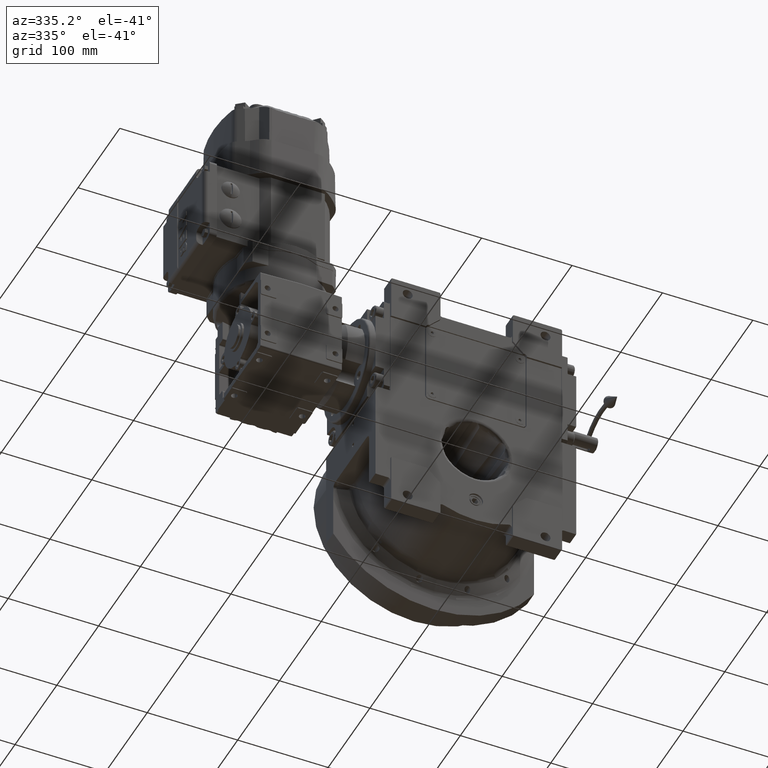
[diagram: clean part render]
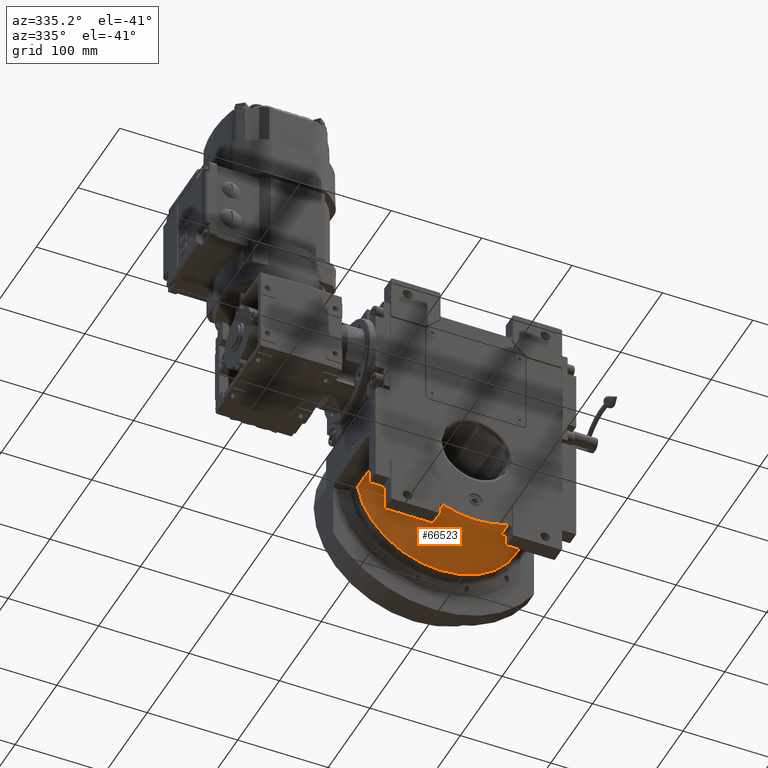
[diagram: same view with one face highlighted and labeled with its STEP entity id]
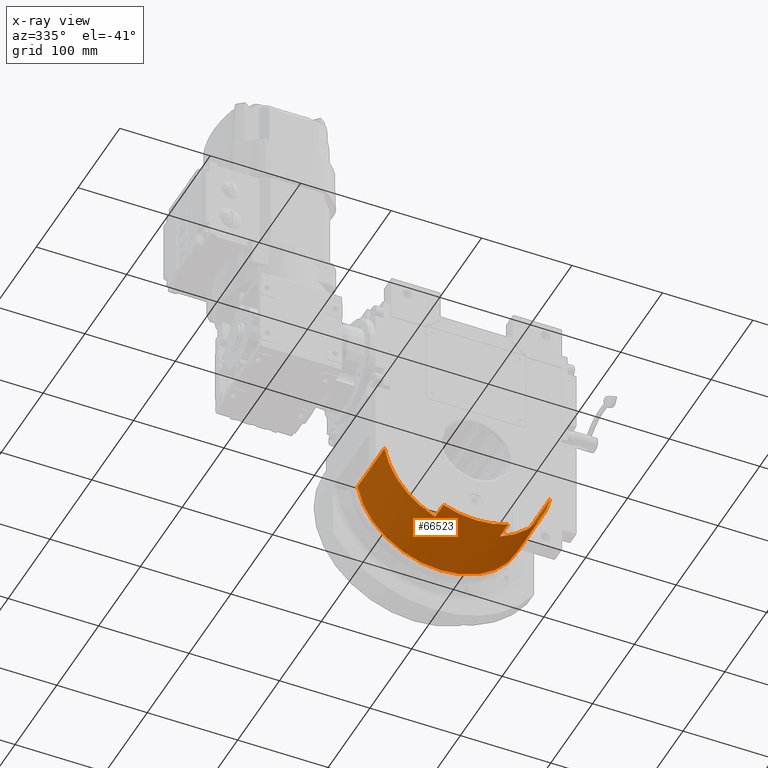
[diagram: x-ray of the same camera — body ghosted, the highlighted face saturated]
A machine part, auxiliary view. The second image highlights one B-rep face of the part: STEP entity #66523.
The next image is the same camera in x-ray: the body ghosted, the highlighted face saturated — about 0% of this face is hidden behind the body in this view.
In plain terms, the highlighted cylindrical surface (partial cylindrical patch) has radius 93 mm, axis along (0, 1, 0).
Its self-contained STEP definition (entity closure, byte-faithful):
#1043 = CARTESIAN_POINT ( 'NONE',  ( 35.84375000000000000, -33.50000000000000000, -85.81506619433150718 ) ) ;
#1050 = EDGE_CURVE ( 'NONE', #10619, #44617, #38602, .T. ) ;
#6469 = EDGE_CURVE ( 'NONE', #51495, #88990, #14395, .T. ) ;
#7081 = EDGE_CURVE ( 'NONE', #40830, #65333, #76378, .T. ) ;
#8034 = CIRCLE ( 'NONE', #33884, 93.00000000000001421 ) ;
#9687 = CARTESIAN_POINT ( 'NONE',  ( 35.84375000000000000, -33.50000000000000000, -85.81506619433150718 ) ) ;
#10321 = DIRECTION ( 'NONE',  ( 0.000000000000000000, 1.000000000000000000, 0.000000000000000000 ) ) ;
#10619 = VERTEX_POINT ( 'NONE', #17804 ) ;
#12515 = CIRCLE ( 'NONE', #68954, 93.00000000000001421 ) ;
#13212 = EDGE_CURVE ( 'NONE', #51495, #32263, #12515, .T. ) ;
#14395 = LINE ( 'NONE', #91633, #65981 ) ;
#15877 = CARTESIAN_POINT ( 'NONE',  ( -35.84375000000000000, -53.50000000000000000, -85.81506619433150718 ) ) ;
#17804 = CARTESIAN_POINT ( 'NONE',  ( -35.84375000000000000, -53.50000000000000000, -85.81506619433150718 ) ) ;
#19284 = ORIENTED_EDGE ( 'NONE', *, *, #7081, .T. ) ;
#20185 = DIRECTION ( 'NONE',  ( 0.000000000000000000, 1.000000000000000000, 0.000000000000000000 ) ) ;
#23895 = ORIENTED_EDGE ( 'NONE', *, *, #70275, .T. ) ;
#25500 = EDGE_CURVE ( 'NONE', #10619, #65333, #77398, .T. ) ;
#25818 = CARTESIAN_POINT ( 'NONE',  ( -91.75016228508779648, -33.50000000000000000, -15.19564808292360070 ) ) ;
#26470 = FACE_OUTER_BOUND ( 'NONE', #45021, .T. ) ;
#26746 = CIRCLE ( 'NONE', #54165, 93.00000000000001421 ) ;
#27737 = ORIENTED_EDGE ( 'NONE', *, *, #25500, .F. ) ;
#30074 = DIRECTION ( 'NONE',  ( 5.743225055535190204E-15, 1.000000000000000000, 2.439003765979129920E-14 ) ) ;
#31138 = ORIENTED_EDGE ( 'NONE', *, *, #73789, .T. ) ;
#32263 = VERTEX_POINT ( 'NONE', #64178 ) ;
#32318 = CARTESIAN_POINT ( 'NONE',  ( -5.684341886080798963E-14, -33.50000000000000000, -4.973799150320699408E-14 ) ) ;
#33432 = ORIENTED_EDGE ( 'NONE', *, *, #98423, .T. ) ;
#33884 = AXIS2_PLACEMENT_3D ( 'NONE', #75203, #20185, #69522 ) ;
#35495 = LINE ( 'NONE', #36984, #83222 ) ;
#36984 = CARTESIAN_POINT ( 'NONE',  ( -91.75016228501930016, -33.50000000000000000, -15.19564808333695183 ) ) ;
#37200 = DIRECTION ( 'NONE',  ( 0.9865608847851539132, -1.678764654171103455E-15, -0.1633940654122239822 ) ) ;
#38602 = LINE ( 'NONE', #15877, #53506 ) ;
#40830 = VERTEX_POINT ( 'NONE', #1043 ) ;
#40884 = DIRECTION ( 'NONE',  ( 0.000000000000000000, 1.000000000000000000, 0.000000000000000000 ) ) ;
#43665 = DIRECTION ( 'NONE',  ( -0.3854166666666672403, 0.000000000000000000, -0.9227426472508764022 ) ) ;
#44617 = VERTEX_POINT ( 'NONE', #46320 ) ;
#44633 = CARTESIAN_POINT ( 'NONE',  ( 1.421085471520200056E-14, -53.50000000000000000, -4.263256414560599853E-14 ) ) ;
#45021 = EDGE_LOOP ( 'NONE', ( #27737, #47925, #33432, #31138, #79077, #45631, #23895, #19284 ) ) ;
#45631 = ORIENTED_EDGE ( 'NONE', *, *, #6469, .T. ) ;
#46320 = CARTESIAN_POINT ( 'NONE',  ( -35.84375000000000000, -33.50000000000000000, -85.81506619433150718 ) ) ;
#47925 = ORIENTED_EDGE ( 'NONE', *, *, #1050, .T. ) ;
#48718 = CARTESIAN_POINT ( 'NONE',  ( -4.517455316885850268E-28, -53.50000000000000000, 0.000000000000000000 ) ) ;
#48811 = CARTESIAN_POINT ( 'NONE',  ( 35.84375000000000000, -53.50000000000000000, -85.81506619433150718 ) ) ;
#51495 = VERTEX_POINT ( 'NONE', #91678 ) ;
#52138 = DIRECTION ( 'NONE',  ( 0.000000000000000000, 1.000000000000000000, 0.000000000000000000 ) ) ;
#52275 = DIRECTION ( 'NONE',  ( 0.000000000000000000, -1.000000000000000000, 0.000000000000000000 ) ) ;
#53506 = VECTOR ( 'NONE', #59863, 1000.000000000000000 ) ;
#54165 = AXIS2_PLACEMENT_3D ( 'NONE', #32318, #40884, #55549 ) ;
#55549 = DIRECTION ( 'NONE',  ( -0.3854166666666659080, 0.000000000000000000, -0.9227426472508768462 ) ) ;
#59863 = DIRECTION ( 'NONE',  ( 1.776356839400250070E-15, 1.000000000000000000, -7.105427357601000281E-16 ) ) ;
#64178 = CARTESIAN_POINT ( 'NONE',  ( -91.75030103113060420, 31.21878279875124917, -15.19503959111690072 ) ) ;
#65333 = VERTEX_POINT ( 'NONE', #48811 ) ;
#65981 = VECTOR ( 'NONE', #52275, 1000.000000000000000 ) ;
#66523 = ADVANCED_FACE ( 'NONE', ( #26470 ), #88100, .T. ) ;
#68954 = AXIS2_PLACEMENT_3D ( 'NONE', #75069, #30074, #37200 ) ;
#69522 = DIRECTION ( 'NONE',  ( 0.9865608847878558629, 0.000000000000000000, -0.1633940653959109757 ) ) ;
#70275 = EDGE_CURVE ( 'NONE', #88990, #40830, #8034, .T. ) ;
#71640 = CARTESIAN_POINT ( 'NONE',  ( 91.75016228514499517, -33.50000000000000000, -15.19564808257825028 ) ) ;
#73789 = EDGE_CURVE ( 'NONE', #84190, #32263, #35495, .T. ) ;
#75069 = CARTESIAN_POINT ( 'NONE',  ( 1.421085471520200056E-14, 31.21878281274215183, 0.000000000000000000 ) ) ;
#75203 = CARTESIAN_POINT ( 'NONE',  ( 1.421085471520200056E-14, -33.50000000000000000, 1.421085471520200056E-14 ) ) ;
#76378 = LINE ( 'NONE', #9687, #96343 ) ;
#77391 = DIRECTION ( 'NONE',  ( 0.000000000000000000, -1.000000000000000000, 0.000000000000000000 ) ) ;
#77398 = CIRCLE ( 'NONE', #93476, 92.99999999999995737 ) ;
#79077 = ORIENTED_EDGE ( 'NONE', *, *, #13212, .F. ) ;
#83222 = VECTOR ( 'NONE', #52138, 1000.000000000000000 ) ;
#84190 = VERTEX_POINT ( 'NONE', #25818 ) ;
#87621 = DIRECTION ( 'NONE',  ( 0.000000000000000000, 0.000000000000000000, 1.000000000000000000 ) ) ;
#88100 = CYLINDRICAL_SURFACE ( 'NONE', #99459, 93.00000000000000000 ) ;
#88990 = VERTEX_POINT ( 'NONE', #71640 ) ;
#90642 = DIRECTION ( 'NONE',  ( 0.000000000000000000, -1.000000000000000000, 0.000000000000000000 ) ) ;
#91633 = CARTESIAN_POINT ( 'NONE',  ( 91.75016228501930016, 31.21878281274199907, -15.19564808333685058 ) ) ;
#91678 = CARTESIAN_POINT ( 'NONE',  ( 91.75016228501930016, 31.21878281274259948, -15.19564808333685058 ) ) ;
#93476 = AXIS2_PLACEMENT_3D ( 'NONE', #44633, #90642, #43665 ) ;
#96343 = VECTOR ( 'NONE', #77391, 1000.000000000000000 ) ;
#98423 = EDGE_CURVE ( 'NONE', #44617, #84190, #26746, .T. ) ;
#99459 = AXIS2_PLACEMENT_3D ( 'NONE', #48718, #10321, #87621 ) ;